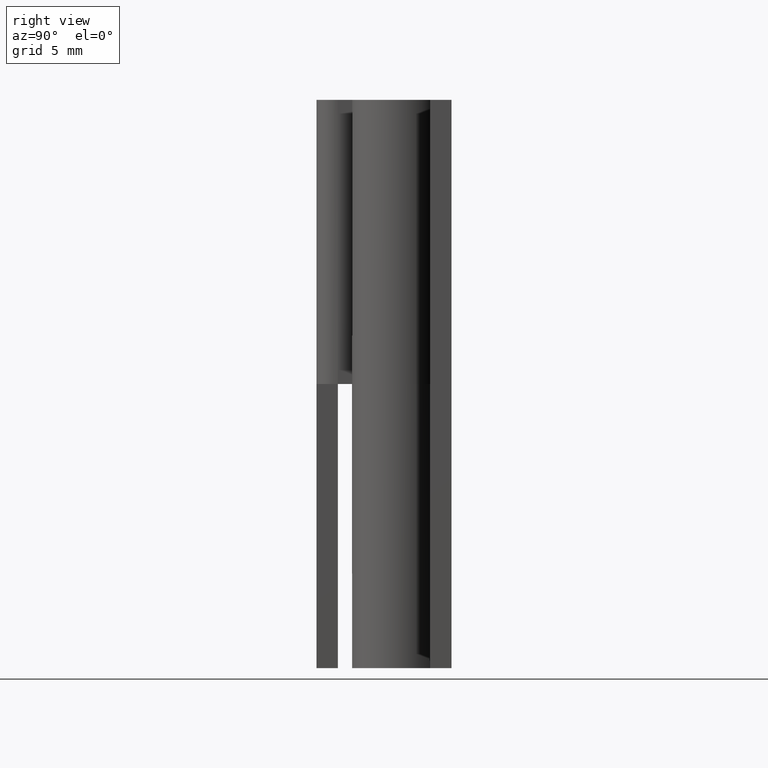
[diagram: clean part render]
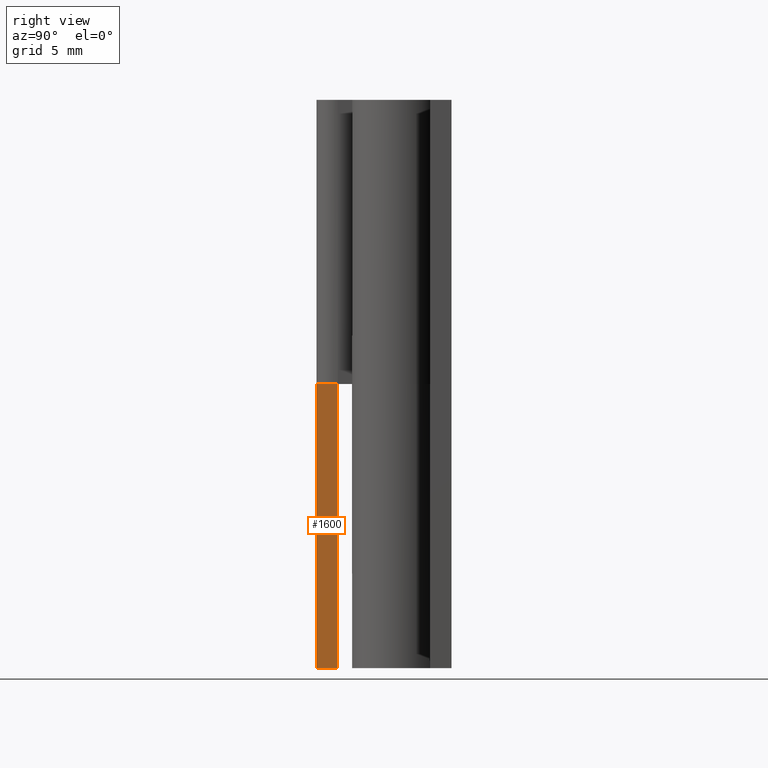
[diagram: same view with one face highlighted and labeled with its STEP entity id]
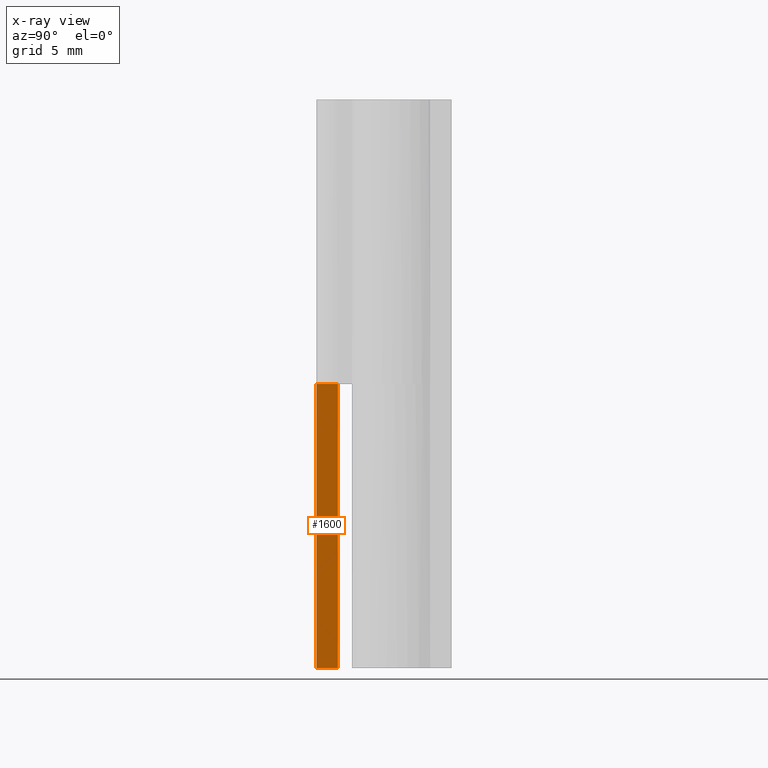
[diagram: x-ray of the same camera — body ghosted, the highlighted face saturated]
A machine part, right view. The second image highlights one B-rep face of the part: STEP entity #1600.
The next image is the same camera in x-ray: the body ghosted, the highlighted face saturated — about 0% of this face is hidden behind the body in this view.
In plain terms, the highlighted face is a freeform B-spline surface patch.
Its self-contained STEP definition (entity closure, byte-faithful):
#1495=CARTESIAN_POINT('',(-4.500000000000000,-5.999999999999890,20.0));
#1496=VERTEX_POINT('',#1495);
#1502=CARTESIAN_POINT('',(-4.500000000000000,-4.499999999999949,20.0));
#1503=VERTEX_POINT('',#1502);
#1504=CARTESIAN_POINT('',(-4.500000000000000,-5.999999999999890,20.0));
#1505=CARTESIAN_POINT('',(-4.500000000000000,-4.499999999999949,20.0));
#1506=QUASI_UNIFORM_CURVE('',1,(#1504,#1505),.UNSPECIFIED.,.F.,.U.);
#1507=EDGE_CURVE('',#1496,#1503,#1506,.T.);
#1573=CARTESIAN_POINT('',(-4.500000000000000,-6.074924997092627,-0.998999961236120));
#1574=CARTESIAN_POINT('',(-4.500000000000000,-6.074924997092627,20.999000497677919));
#1575=CARTESIAN_POINT('',(-4.500000000000000,-4.425074962674107,-0.998999961236120));
#1576=CARTESIAN_POINT('',(-4.500000000000000,-4.425074962674107,20.999000497677919));
#1577=B_SPLINE_SURFACE_WITH_KNOTS('',1,1,((#1573,#1575),(#1574,#1576)),.UNSPECIFIED.,.F.,.F.,.U.,(2,2),(2,2),(0.0,21.998000458914039),(0.041708334948495,0.958291687403247),.UNSPECIFIED.);
#1578=CARTESIAN_POINT('',(-4.500000000000000,-4.499999999999949,0.0));
#1579=VERTEX_POINT('',#1578);
#1580=CARTESIAN_POINT('',(-4.500000000000000,-4.499999999999949,0.0));
#1581=CARTESIAN_POINT('',(-4.500000000000000,-4.499999999999949,20.0));
#1582=QUASI_UNIFORM_CURVE('',1,(#1580,#1581),.UNSPECIFIED.,.F.,.U.);
#1583=EDGE_CURVE('',#1579,#1503,#1582,.T.);
#1584=ORIENTED_EDGE('',*,*,#1583,.T.);
#1585=ORIENTED_EDGE('',*,*,#1507,.F.);
#1586=CARTESIAN_POINT('',(-4.500000000000000,-5.999999999999920,0.0));
#1587=VERTEX_POINT('',#1586);
#1588=CARTESIAN_POINT('',(-4.500000000000000,-5.999999999999920,0.0));
#1589=CARTESIAN_POINT('',(-4.500000000000000,-5.999999999999890,20.0));
#1590=QUASI_UNIFORM_CURVE('',1,(#1588,#1589),.UNSPECIFIED.,.F.,.U.);
#1591=EDGE_CURVE('',#1587,#1496,#1590,.T.);
#1592=ORIENTED_EDGE('',*,*,#1591,.F.);
#1593=CARTESIAN_POINT('',(-4.500000000000000,-5.999999999999920,0.0));
#1594=CARTESIAN_POINT('',(-4.500000000000000,-4.499999999999949,0.0));
#1595=QUASI_UNIFORM_CURVE('',1,(#1593,#1594),.UNSPECIFIED.,.F.,.U.);
#1596=EDGE_CURVE('',#1587,#1579,#1595,.T.);
#1597=ORIENTED_EDGE('',*,*,#1596,.T.);
#1598=EDGE_LOOP('',(#1584,#1585,#1592,#1597));
#1599=FACE_OUTER_BOUND('',#1598,.T.);
#1600=ADVANCED_FACE('',(#1599),#1577,.F.);